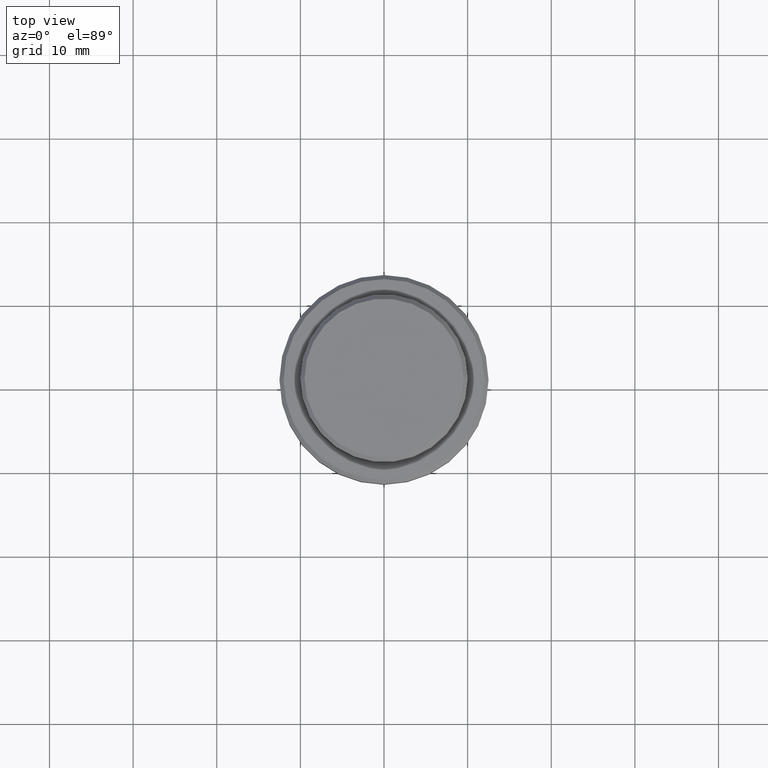
[diagram: clean part render]
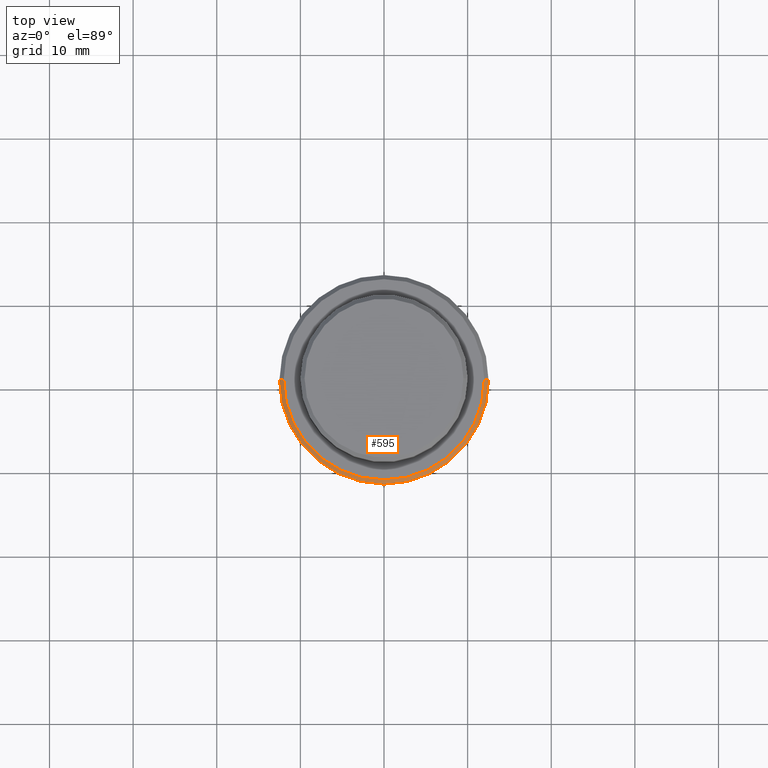
[diagram: same view with one face highlighted and labeled with its STEP entity id]
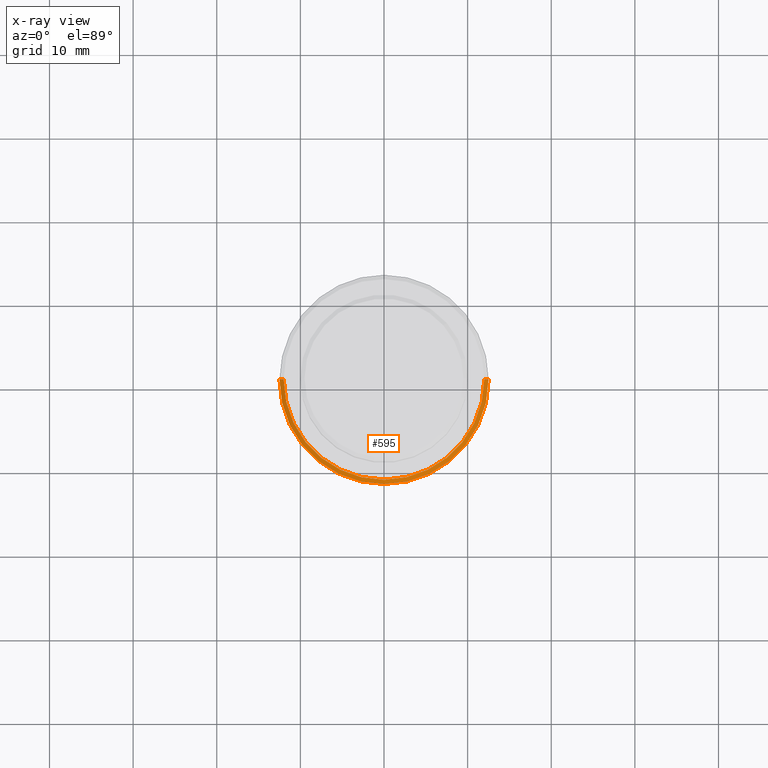
[diagram: x-ray of the same camera — body ghosted, the highlighted face saturated]
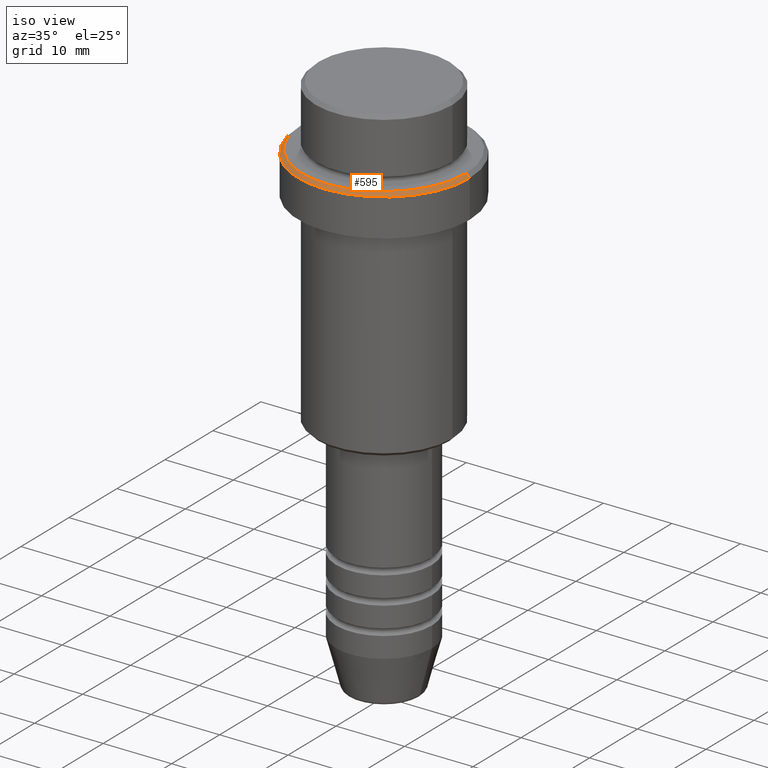
[diagram: same view with one face highlighted and labeled with its STEP entity id]
A machine part, top view. The second image highlights one B-rep face of the part: STEP entity #595.
The next image is the same camera in x-ray: the body ghosted, the highlighted face saturated — about 0% of this face is hidden behind the body in this view.
A second angle (iso view) of the same face is appended — the face is thin or edge-on in the first view.
In plain terms, the highlighted conical surface has half-angle 45 deg.
Its self-contained STEP definition (entity closure, byte-faithful):
#62 = VECTOR ( 'NONE', #1050, 1000.000000000000000 ) ;
#67 = VERTEX_POINT ( 'NONE', #102 ) ;
#83 = CARTESIAN_POINT ( 'NONE',  ( -12.00000000000001066, 0.000000000000000000, -9.000000000000000000 ) ) ;
#102 = CARTESIAN_POINT ( 'NONE',  ( 12.00000000000001066, 1.500192328955508326E-15, -9.000000000000000000 ) ) ;
#190 = CARTESIAN_POINT ( 'NONE',  ( 0.000000000000000000, 0.000000000000000000, -9.000000000000000000 ) ) ;
#218 = ORIENTED_EDGE ( 'NONE', *, *, #1330, .T. ) ;
#221 = CARTESIAN_POINT ( 'NONE',  ( -12.50000000000000000, 1.530808498934191521E-15, -9.499999999999998224 ) ) ;
#227 = ORIENTED_EDGE ( 'NONE', *, *, #1270, .F. ) ;
#262 = VERTEX_POINT ( 'NONE', #682 ) ;
#300 = ORIENTED_EDGE ( 'NONE', *, *, #789, .F. ) ;
#400 = EDGE_LOOP ( 'NONE', ( #300, #227, #218, #423 ) ) ;
#423 = ORIENTED_EDGE ( 'NONE', *, *, #1177, .F. ) ;
#436 = CARTESIAN_POINT ( 'NONE',  ( -12.00000000000001066, 0.000000000000000000, -9.000000000000000000 ) ) ;
#504 = AXIS2_PLACEMENT_3D ( 'NONE', #190, #1074, #1388 ) ;
#595 = ADVANCED_FACE ( 'NONE', ( #643 ), #1197, .T. ) ;
#643 = FACE_OUTER_BOUND ( 'NONE', #400, .T. ) ;
#649 = CIRCLE ( 'NONE', #1200, 12.50000000000000000 ) ;
#682 = CARTESIAN_POINT ( 'NONE',  ( 12.50000000000000000, 0.000000000000000000, -9.499999999999998224 ) ) ;
#689 = DIRECTION ( 'NONE',  ( 1.000000000000000000, 0.000000000000000000, 0.000000000000000000 ) ) ;
#728 = VERTEX_POINT ( 'NONE', #221 ) ;
#756 = VERTEX_POINT ( 'NONE', #436 ) ;
#789 = EDGE_CURVE ( 'NONE', #67, #262, #1194, .T. ) ;
#798 = AXIS2_PLACEMENT_3D ( 'NONE', #1076, #1198, #1314 ) ;
#955 = DIRECTION ( 'NONE',  ( 0.7071067811865414665, 8.659560562354857670E-17, -0.7071067811865536790 ) ) ;
#1015 = DIRECTION ( 'NONE',  ( 0.000000000000000000, 0.000000000000000000, -1.000000000000000000 ) ) ;
#1050 = DIRECTION ( 'NONE',  ( -0.7071067811865414665, 0.000000000000000000, -0.7071067811865536790 ) ) ;
#1074 = DIRECTION ( 'NONE',  ( -0.000000000000000000, -0.000000000000000000, 1.000000000000000000 ) ) ;
#1076 = CARTESIAN_POINT ( 'NONE',  ( 0.000000000000000000, 0.000000000000000000, -9.000000000000000000 ) ) ;
#1135 = CARTESIAN_POINT ( 'NONE',  ( 0.000000000000000000, 0.000000000000000000, -9.499999999999998224 ) ) ;
#1169 = VECTOR ( 'NONE', #955, 1000.000000000000000 ) ;
#1177 = EDGE_CURVE ( 'NONE', #262, #728, #649, .T. ) ;
#1180 = LINE ( 'NONE', #83, #62 ) ;
#1194 = LINE ( 'NONE', #1393, #1169 ) ;
#1197 = CONICAL_SURFACE ( 'NONE', #798, 12.00000000000001066, 0.7853981633974396193 ) ;
#1198 = DIRECTION ( 'NONE',  ( 0.000000000000000000, 0.000000000000000000, -1.000000000000000000 ) ) ;
#1200 = AXIS2_PLACEMENT_3D ( 'NONE', #1135, #1015, #689 ) ;
#1237 = CIRCLE ( 'NONE', #504, 12.00000000000001066 ) ;
#1270 = EDGE_CURVE ( 'NONE', #756, #67, #1237, .T. ) ;
#1314 = DIRECTION ( 'NONE',  ( -1.000000000000000000, 0.000000000000000000, 0.000000000000000000 ) ) ;
#1330 = EDGE_CURVE ( 'NONE', #756, #728, #1180, .T. ) ;
#1388 = DIRECTION ( 'NONE',  ( 1.000000000000000000, 0.000000000000000000, 0.000000000000000000 ) ) ;
#1393 = CARTESIAN_POINT ( 'NONE',  ( 12.00000000000001066, 1.469576158976825131E-15, -9.000000000000000000 ) ) ;